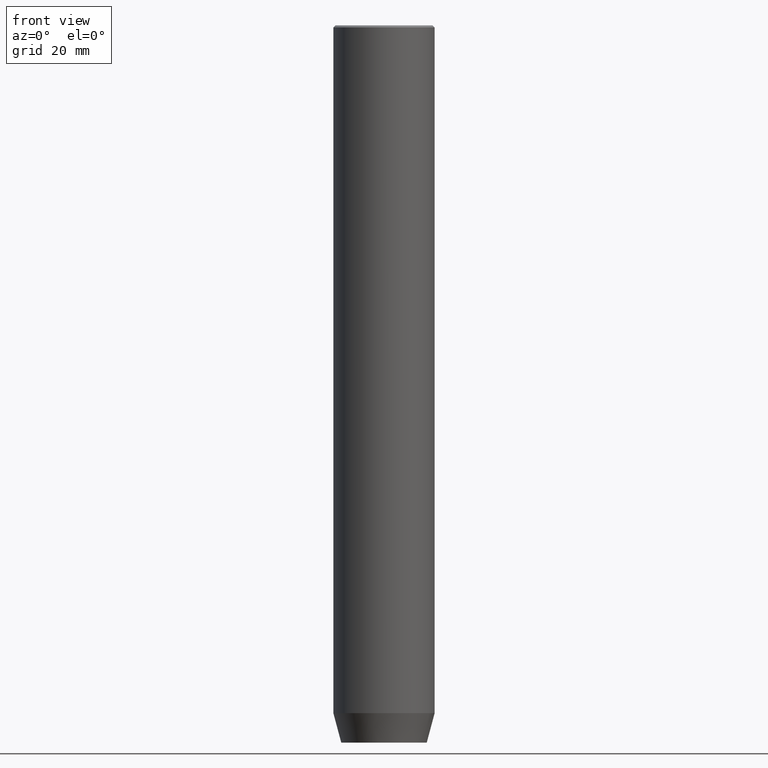
[diagram: clean part render]
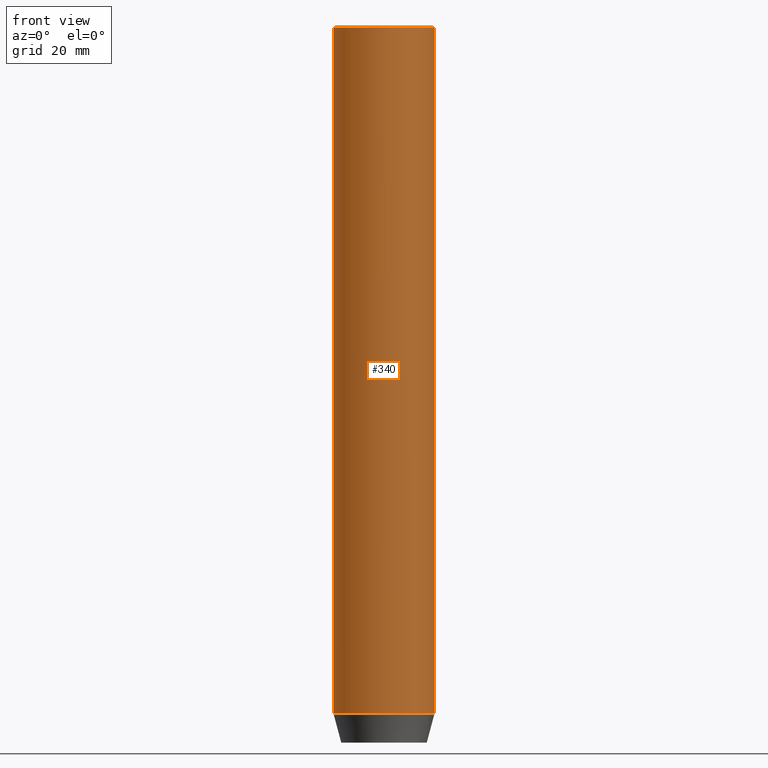
[diagram: same view with one face highlighted and labeled with its STEP entity id]
A machine part, front view. The second image highlights one B-rep face of the part: STEP entity #340.
In plain terms, the highlighted cylindrical surface (partial cylindrical patch) has radius 12 mm, axis along (-0, -0, 1).
Its self-contained STEP definition (entity closure, byte-faithful):
#3 = VECTOR ( 'NONE', #61, 1000.000000000000000 ) ;
#10 = AXIS2_PLACEMENT_3D ( 'NONE', #182, #54, #540 ) ;
#15 = CARTESIAN_POINT ( 'NONE',  ( 12.00000000000000000, 0.000000000000000000, -162.9999999999999716 ) ) ;
#54 = DIRECTION ( 'NONE',  ( -0.000000000000000000, -0.000000000000000000, 1.000000000000000000 ) ) ;
#55 = CARTESIAN_POINT ( 'NONE',  ( -12.00000000000000000, 1.469576158976823947E-15, -162.9999999999999716 ) ) ;
#61 = DIRECTION ( 'NONE',  ( -0.000000000000000000, -0.000000000000000000, 1.000000000000000000 ) ) ;
#65 = DIRECTION ( 'NONE',  ( 1.000000000000000000, 0.000000000000000000, 0.000000000000000000 ) ) ;
#66 = VERTEX_POINT ( 'NONE', #55 ) ;
#107 = EDGE_LOOP ( 'NONE', ( #468, #343, #233, #549 ) ) ;
#108 = CARTESIAN_POINT ( 'NONE',  ( 0.000000000000000000, 0.000000000000000000, -162.9999999999999716 ) ) ;
#134 = FACE_OUTER_BOUND ( 'NONE', #107, .T. ) ;
#135 = DIRECTION ( 'NONE',  ( 1.000000000000000000, 0.000000000000000000, 0.000000000000000000 ) ) ;
#159 = CARTESIAN_POINT ( 'NONE',  ( -12.00000000000000000, 1.469576158976823947E-15, -0.5000000000000056621 ) ) ;
#179 = LINE ( 'NONE', #401, #437 ) ;
#182 = CARTESIAN_POINT ( 'NONE',  ( 0.000000000000000000, 0.000000000000000000, 0.000000000000000000 ) ) ;
#197 = VERTEX_POINT ( 'NONE', #159 ) ;
#222 = CYLINDRICAL_SURFACE ( 'NONE', #10, 12.00000000000000000 ) ;
#233 = ORIENTED_EDGE ( 'NONE', *, *, #300, .T. ) ;
#292 = DIRECTION ( 'NONE',  ( -0.000000000000000000, -0.000000000000000000, 1.000000000000000000 ) ) ;
#300 = EDGE_CURVE ( 'NONE', #495, #547, #514, .T. ) ;
#313 = DIRECTION ( 'NONE',  ( -0.000000000000000000, -0.000000000000000000, 1.000000000000000000 ) ) ;
#340 = ADVANCED_FACE ( 'NONE', ( #134 ), #222, .T. ) ;
#341 = CIRCLE ( 'NONE', #576, 12.00000000000000000 ) ;
#343 = ORIENTED_EDGE ( 'NONE', *, *, #571, .T. ) ;
#353 = CARTESIAN_POINT ( 'NONE',  ( 0.000000000000000000, 0.000000000000000000, -0.5000000000000056621 ) ) ;
#379 = CIRCLE ( 'NONE', #457, 12.00000000000000000 ) ;
#384 = EDGE_CURVE ( 'NONE', #547, #197, #379, .T. ) ;
#401 = CARTESIAN_POINT ( 'NONE',  ( -12.00000000000000000, 1.469576158976823947E-15, 0.000000000000000000 ) ) ;
#404 = DIRECTION ( 'NONE',  ( 0.000000000000000000, 0.000000000000000000, -1.000000000000000000 ) ) ;
#422 = CARTESIAN_POINT ( 'NONE',  ( 12.00000000000000000, 0.000000000000000000, -0.5000000000000056621 ) ) ;
#427 = EDGE_CURVE ( 'NONE', #66, #197, #179, .T. ) ;
#437 = VECTOR ( 'NONE', #313, 1000.000000000000000 ) ;
#457 = AXIS2_PLACEMENT_3D ( 'NONE', #353, #404, #135 ) ;
#468 = ORIENTED_EDGE ( 'NONE', *, *, #427, .F. ) ;
#495 = VERTEX_POINT ( 'NONE', #15 ) ;
#514 = LINE ( 'NONE', #568, #3 ) ;
#540 = DIRECTION ( 'NONE',  ( 1.000000000000000000, 0.000000000000000000, 0.000000000000000000 ) ) ;
#547 = VERTEX_POINT ( 'NONE', #422 ) ;
#549 = ORIENTED_EDGE ( 'NONE', *, *, #384, .T. ) ;
#568 = CARTESIAN_POINT ( 'NONE',  ( 12.00000000000000000, 0.000000000000000000, 0.000000000000000000 ) ) ;
#571 = EDGE_CURVE ( 'NONE', #66, #495, #341, .T. ) ;
#576 = AXIS2_PLACEMENT_3D ( 'NONE', #108, #292, #65 ) ;